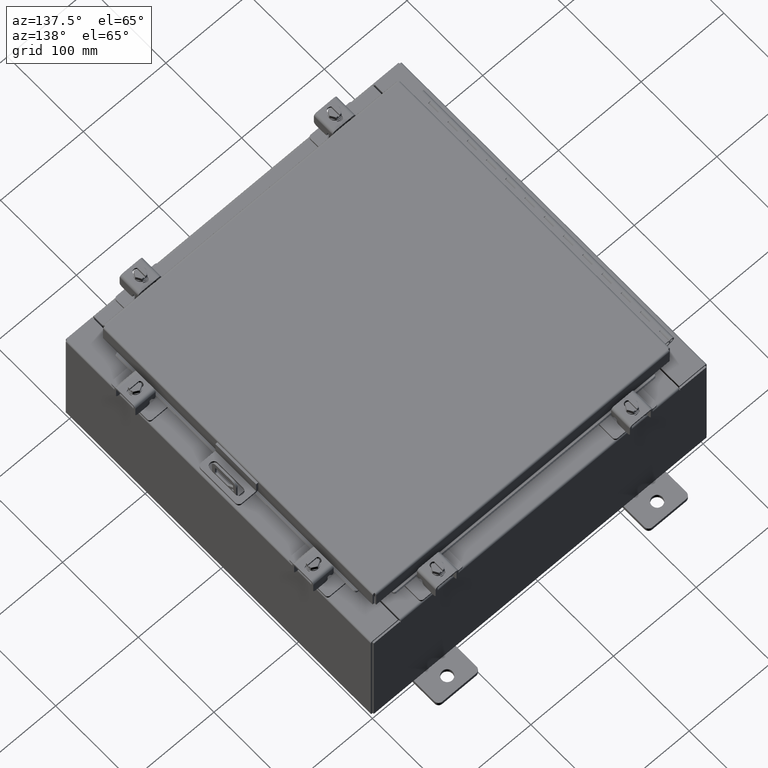
[diagram: clean part render]
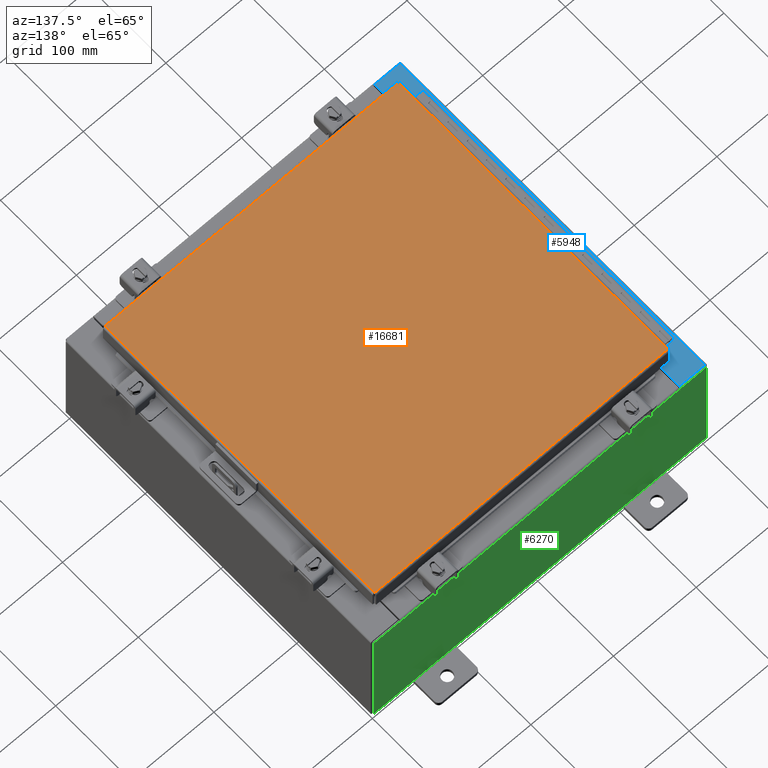
[diagram: same view with three faces highlighted in distinct colors, each labeled with its STEP entity id]
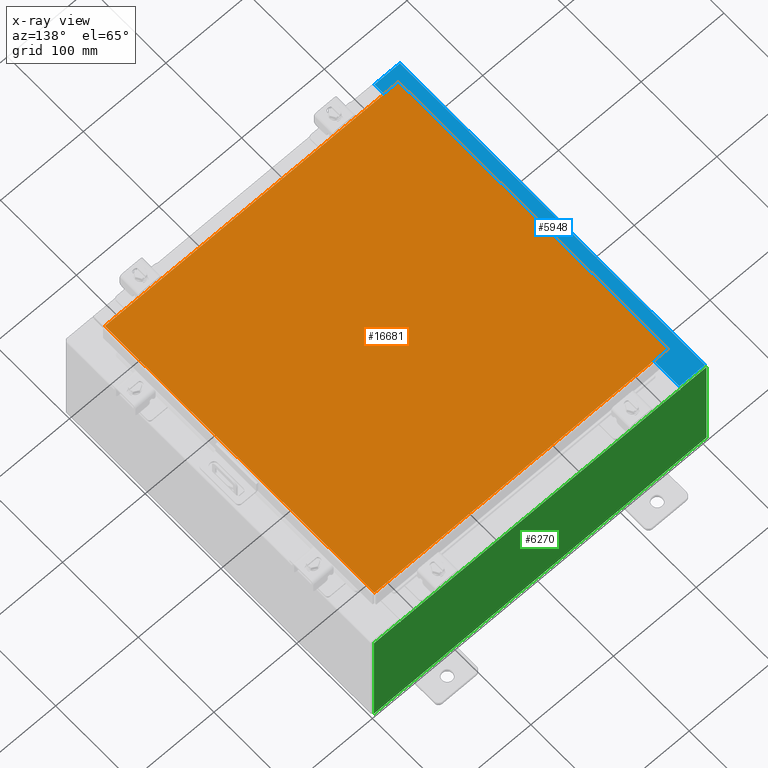
[diagram: x-ray of the same camera — body ghosted, the three highlighted faces saturated]
A machine part, auxiliary view with three faces highlighted in distinct colors.
The next image is the same camera in x-ray (body ghosted, the three faces saturated) — at least one of them is partly hidden behind the body in this view.
Their STEP definitions:

[orange] entity #16681 — the highlighted planar face has unit normal (0, 0, -1).
#27 = CARTESIAN_POINT ( 'NONE',  ( -6.990300000000001300, -7.006300000000000400, -2.048885995248197400E-016 ) ) ;
#227 = DIRECTION ( 'NONE',  ( -1.000000000000000000, 0.0000000000000000000, -0.0000000000000000000 ) ) ;
#590 = ORIENTED_EDGE ( 'NONE', *, *, #698, .T. ) ;
#698 = EDGE_CURVE ( 'NONE', #19319, #25460, #5101, .T. ) ;
#1067 = VERTEX_POINT ( 'NONE', #21289 ) ;
#3826 = VECTOR ( 'NONE', #24839, 39.37007874015748100 ) ;
#4515 = VECTOR ( 'NONE', #22687, 39.37007874015748100 ) ;
#4789 = CARTESIAN_POINT ( 'NONE',  ( 6.990299999999998600, -7.006300000000000400, -2.048885995248197400E-016 ) ) ;
#4858 = EDGE_CURVE ( 'NONE', #1067, #19319, #19912, .T. ) ;
#5101 = LINE ( 'NONE', #11307, #10512 ) ;
#5602 = CARTESIAN_POINT ( 'NONE',  ( 6.990299999999998600, 7.006300000000000400, -2.048885995248197400E-016 ) ) ;
#7922 = AXIS2_PLACEMENT_3D ( 'NONE', #8279, #12360, #227 ) ;
#8040 = DIRECTION ( 'NONE',  ( 0.0000000000000000000, 1.000000000000000000, 0.0000000000000000000 ) ) ;
#8121 = DIRECTION ( 'NONE',  ( 1.000000000000000000, -0.0000000000000000000, -0.0000000000000000000 ) ) ;
#8279 = CARTESIAN_POINT ( 'NONE',  ( 0.0000000000000000000, 0.0000000000000000000, 0.0000000000000000000 ) ) ;
#8790 = CARTESIAN_POINT ( 'NONE',  ( -6.990300000000001300, 7.006300000000000400, 3.414809992080329000E-016 ) ) ;
#9061 = VECTOR ( 'NONE', #8040, 39.37007874015748100 ) ;
#9714 = LINE ( 'NONE', #4789, #9061 ) ;
#10229 = FACE_OUTER_BOUND ( 'NONE', #20604, .T. ) ;
#10512 = VECTOR ( 'NONE', #8121, 39.37007874015748100 ) ;
#10654 = CARTESIAN_POINT ( 'NONE',  ( 6.990299999999998600, 7.006300000000000400, -2.048885995248197400E-016 ) ) ;
#10866 = ORIENTED_EDGE ( 'NONE', *, *, #4858, .T. ) ;
#10899 = VERTEX_POINT ( 'NONE', #5602 ) ;
#11307 = CARTESIAN_POINT ( 'NONE',  ( -6.990300000000001300, -7.006300000000000400, -2.048885995248197400E-016 ) ) ;
#11753 = EDGE_CURVE ( 'NONE', #25460, #10899, #9714, .T. ) ;
#12360 = DIRECTION ( 'NONE',  ( 0.0000000000000000000, 0.0000000000000000000, -1.000000000000000000 ) ) ;
#16681 = ADVANCED_FACE ( 'NONE', ( #10229 ), #18324, .F. ) ;
#17956 = ORIENTED_EDGE ( 'NONE', *, *, #11753, .T. ) ;
#18324 = PLANE ( 'NONE',  #7922 ) ;
#19319 = VERTEX_POINT ( 'NONE', #27 ) ;
#19912 = LINE ( 'NONE', #8790, #3826 ) ;
#20604 = EDGE_LOOP ( 'NONE', ( #590, #17956, #23325, #10866 ) ) ;
#21289 = CARTESIAN_POINT ( 'NONE',  ( -6.990300000000001300, 7.006300000000000400, 3.414809992080329000E-016 ) ) ;
#21367 = EDGE_CURVE ( 'NONE', #10899, #1067, #25965, .T. ) ;
#22687 = DIRECTION ( 'NONE',  ( -1.000000000000000000, -0.0000000000000000000, -0.0000000000000000000 ) ) ;
#23325 = ORIENTED_EDGE ( 'NONE', *, *, #21367, .T. ) ;
#24086 = CARTESIAN_POINT ( 'NONE',  ( 6.990299999999998600, -7.006300000000000400, -2.048885995248197400E-016 ) ) ;
#24839 = DIRECTION ( 'NONE',  ( 0.0000000000000000000, -1.000000000000000000, 0.0000000000000000000 ) ) ;
#25460 = VERTEX_POINT ( 'NONE', #24086 ) ;
#25965 = LINE ( 'NONE', #10654, #4515 ) ;

[blue] entity #5948 — the highlighted planar face has unit normal (0, 0, -1).
#746 = ORIENTED_EDGE ( 'NONE', *, *, #3103, .F. ) ;
#830 = CARTESIAN_POINT ( 'NONE',  ( -6.699700000000021300, -6.631100000000000900, 5.925300000000008000 ) ) ;
#1412 = LINE ( 'NONE', #8893, #6156 ) ;
#2247 = ORIENTED_EDGE ( 'NONE', *, *, #21503, .F. ) ;
#2326 = VERTEX_POINT ( 'NONE', #9557 ) ;
#2344 = CARTESIAN_POINT ( 'NONE',  ( -6.699700000000021300, 6.631100000000000000, 5.925300000000008000 ) ) ;
#3067 = VERTEX_POINT ( 'NONE', #5037 ) ;
#3103 = EDGE_CURVE ( 'NONE', #6498, #2326, #18593, .T. ) ;
#3966 = CARTESIAN_POINT ( 'NONE',  ( -7.912300000000022300, 7.925299999999998200, 5.925299999999999100 ) ) ;
#4132 = EDGE_CURVE ( 'NONE', #3067, #10448, #13666, .T. ) ;
#4252 = ORIENTED_EDGE ( 'NONE', *, *, #4132, .T. ) ;
#4886 = CARTESIAN_POINT ( 'NONE',  ( -6.712700000000023000, 6.593749999999999100, 5.925300000000008000 ) ) ;
#5037 = CARTESIAN_POINT ( 'NONE',  ( -6.699700000000021300, 6.631100000000000000, 5.925300000000008000 ) ) ;
#5338 = EDGE_CURVE ( 'NONE', #11186, #25336, #25891, .T. ) ;
#5948 = ADVANCED_FACE ( 'NONE', ( #9811 ), #13731, .F. ) ;
#6156 = VECTOR ( 'NONE', #20955, 39.37007874015748100 ) ;
#6498 = VERTEX_POINT ( 'NONE', #19713 ) ;
#6851 = VERTEX_POINT ( 'NONE', #14761 ) ;
#7120 = CARTESIAN_POINT ( 'NONE',  ( -6.699700000000021300, -3.231034617030575100E-030, 5.925300000000008000 ) ) ;
#7233 = DIRECTION ( 'NONE',  ( -7.132762385546378400E-015, -0.0000000000000000000, 1.000000000000000000 ) ) ;
#7430 = DIRECTION ( 'NONE',  ( 6.893992640440775600E-017, 1.000000000000000000, 4.917321139196952400E-031 ) ) ;
#7492 = ORIENTED_EDGE ( 'NONE', *, *, #21935, .F. ) ;
#7513 = DIRECTION ( 'NONE',  ( 1.000000000000000000, 0.0000000000000000000, 0.0000000000000000000 ) ) ;
#7642 = VECTOR ( 'NONE', #7513, 39.37007874015748100 ) ;
#7710 = DIRECTION ( 'NONE',  ( 7.132762385546378400E-015, 0.0000000000000000000, -1.000000000000000000 ) ) ;
#8110 = VERTEX_POINT ( 'NONE', #3966 ) ;
#8593 = LINE ( 'NONE', #24260, #13968 ) ;
#8893 = CARTESIAN_POINT ( 'NONE',  ( -4.252457061908993700E-014, 7.925299999999998200, 5.925300000000056000 ) ) ;
#8967 = LINE ( 'NONE', #26102, #19684 ) ;
#9162 = DIRECTION ( 'NONE',  ( -4.822655666717293700E-031, 1.000000000000000000, -3.439885693800320600E-045 ) ) ;
#9238 = LINE ( 'NONE', #2344, #9900 ) ;
#9331 = DIRECTION ( 'NONE',  ( 1.000000000000000000, 8.758115402030108600E-047, 7.132762385546378400E-015 ) ) ;
#9557 = CARTESIAN_POINT ( 'NONE',  ( -6.750050000000023000, -6.631099999999999100, 5.925300000000008000 ) ) ;
#9811 = FACE_OUTER_BOUND ( 'NONE', #12760, .T. ) ;
#9900 = VECTOR ( 'NONE', #16491, 39.37007874015748100 ) ;
#10189 = DIRECTION ( 'NONE',  ( 1.000000000000000000, -2.170286390199955400E-014, 0.0000000000000000000 ) ) ;
#10448 = VERTEX_POINT ( 'NONE', #21785 ) ;
#11186 = VERTEX_POINT ( 'NONE', #16534 ) ;
#11494 = CARTESIAN_POINT ( 'NONE',  ( -6.750050000000023000, 6.593749999999999100, 5.925300000000008000 ) ) ;
#11823 = CARTESIAN_POINT ( 'NONE',  ( -6.750050000000023000, 6.631099999999998200, 5.925300000000008000 ) ) ;
#11893 = CARTESIAN_POINT ( 'NONE',  ( -6.750050000000023000, 6.612424999999998200, 5.925300000000008000 ) ) ;
#12002 = LINE ( 'NONE', #23558, #16739 ) ;
#12264 = CIRCLE ( 'NONE', #22816, 0.01867500000000058700 ) ;
#12297 = DIRECTION ( 'NONE',  ( -4.822655666717293700E-031, 1.000000000000000000, -3.439885693800320600E-045 ) ) ;
#12760 = EDGE_LOOP ( 'NONE', ( #13948, #4252, #17072, #18811, #14751, #16369, #7492, #746, #23773, #2247, #19808, #15692 ) ) ;
#13027 = VECTOR ( 'NONE', #9162, 39.37007874015748100 ) ;
#13658 = EDGE_CURVE ( 'NONE', #25336, #16871, #25030, .T. ) ;
#13666 = LINE ( 'NONE', #7120, #13027 ) ;
#13731 = PLANE ( 'NONE',  #16056 ) ;
#13915 = DIRECTION ( 'NONE',  ( 1.000000000000000000, 0.0000000000000000000, 0.0000000000000000000 ) ) ;
#13948 = ORIENTED_EDGE ( 'NONE', *, *, #20643, .F. ) ;
#13968 = VECTOR ( 'NONE', #10189, 39.37007874015748100 ) ;
#14044 = DIRECTION ( 'NONE',  ( -1.000000000000000000, 0.0000000000000000000, 0.0000000000000000000 ) ) ;
#14751 = ORIENTED_EDGE ( 'NONE', *, *, #5338, .T. ) ;
#14761 = CARTESIAN_POINT ( 'NONE',  ( -6.712700000000023000, 6.593749999999999100, 5.925300000000008000 ) ) ;
#15139 = EDGE_CURVE ( 'NONE', #10448, #8110, #1412, .T. ) ;
#15692 = ORIENTED_EDGE ( 'NONE', *, *, #24728, .F. ) ;
#16056 = AXIS2_PLACEMENT_3D ( 'NONE', #25788, #7710, #21817 ) ;
#16369 = ORIENTED_EDGE ( 'NONE', *, *, #13658, .T. ) ;
#16491 = DIRECTION ( 'NONE',  ( -1.000000000000000000, -2.170286390199955400E-014, 0.0000000000000000000 ) ) ;
#16532 = VERTEX_POINT ( 'NONE', #11823 ) ;
#16534 = CARTESIAN_POINT ( 'NONE',  ( -7.912300000000022300, -7.925300000000000000, 5.925299999999999100 ) ) ;
#16739 = VECTOR ( 'NONE', #7430, 39.37007874015748100 ) ;
#16871 = VERTEX_POINT ( 'NONE', #830 ) ;
#17072 = ORIENTED_EDGE ( 'NONE', *, *, #15139, .T. ) ;
#17586 = CARTESIAN_POINT ( 'NONE',  ( -6.750050000000023000, 6.593749999999999100, 5.925300000000008000 ) ) ;
#18593 = CIRCLE ( 'NONE', #18605, 0.01867500000000058700 ) ;
#18605 = AXIS2_PLACEMENT_3D ( 'NONE', #19298, #7233, #21323 ) ;
#18811 = ORIENTED_EDGE ( 'NONE', *, *, #23416, .F. ) ;
#18970 = DIRECTION ( 'NONE',  ( -0.0000000000000000000, -1.000000000000000000, -0.0000000000000000000 ) ) ;
#19298 = CARTESIAN_POINT ( 'NONE',  ( -6.750050000000023000, -6.612424999999998200, 5.925300000000008000 ) ) ;
#19356 = CARTESIAN_POINT ( 'NONE',  ( -4.252457061908993700E-014, -7.925300000000000000, 5.925300000000056000 ) ) ;
#19675 = VECTOR ( 'NONE', #12297, 39.37007874015748100 ) ;
#19684 = VECTOR ( 'NONE', #14044, 39.37007874015748100 ) ;
#19713 = CARTESIAN_POINT ( 'NONE',  ( -6.750050000000023000, -6.593749999999999100, 5.925300000000008000 ) ) ;
#19808 = ORIENTED_EDGE ( 'NONE', *, *, #21705, .F. ) ;
#19970 = EDGE_CURVE ( 'NONE', #22497, #6498, #8967, .T. ) ;
#20346 = CARTESIAN_POINT ( 'NONE',  ( -6.712700000000023000, -6.593749999999999100, 5.925300000000008000 ) ) ;
#20518 = VECTOR ( 'NONE', #9331, 39.37007874015748100 ) ;
#20643 = EDGE_CURVE ( 'NONE', #3067, #16532, #9238, .T. ) ;
#20955 = DIRECTION ( 'NONE',  ( -1.000000000000000000, -6.146651423996189400E-032, -7.132762385546378400E-015 ) ) ;
#21323 = DIRECTION ( 'NONE',  ( 1.000000000000000000, 0.0000000000000000000, 0.0000000000000000000 ) ) ;
#21503 = EDGE_CURVE ( 'NONE', #6851, #22497, #24053, .T. ) ;
#21625 = CARTESIAN_POINT ( 'NONE',  ( -6.699700000000021300, -7.925300000000000000, 5.925300000000008000 ) ) ;
#21696 = VERTEX_POINT ( 'NONE', #11494 ) ;
#21705 = EDGE_CURVE ( 'NONE', #21696, #6851, #23727, .T. ) ;
#21785 = CARTESIAN_POINT ( 'NONE',  ( -6.699700000000021300, 7.925299999999998200, 5.925300000000008000 ) ) ;
#21817 = DIRECTION ( 'NONE',  ( -1.000000000000000000, 0.0000000000000000000, -7.132762385546378400E-015 ) ) ;
#21935 = EDGE_CURVE ( 'NONE', #2326, #16871, #8593, .T. ) ;
#22497 = VERTEX_POINT ( 'NONE', #20346 ) ;
#22788 = VECTOR ( 'NONE', #18970, 39.37007874015748100 ) ;
#22816 = AXIS2_PLACEMENT_3D ( 'NONE', #11893, #25974, #13915 ) ;
#23416 = EDGE_CURVE ( 'NONE', #11186, #8110, #12002, .T. ) ;
#23558 = CARTESIAN_POINT ( 'NONE',  ( -7.912300000000021400, 7.925299999999998200, 5.925299999999999100 ) ) ;
#23727 = LINE ( 'NONE', #17586, #7642 ) ;
#23773 = ORIENTED_EDGE ( 'NONE', *, *, #19970, .F. ) ;
#24053 = LINE ( 'NONE', #4886, #22788 ) ;
#24260 = CARTESIAN_POINT ( 'NONE',  ( -6.750050000000023000, -6.631099999999999100, 5.925300000000008000 ) ) ;
#24345 = CARTESIAN_POINT ( 'NONE',  ( -6.699700000000021300, -3.231034617030575100E-030, 5.925300000000008000 ) ) ;
#24728 = EDGE_CURVE ( 'NONE', #16532, #21696, #12264, .T. ) ;
#25030 = LINE ( 'NONE', #24345, #19675 ) ;
#25336 = VERTEX_POINT ( 'NONE', #21625 ) ;
#25788 = CARTESIAN_POINT ( 'NONE',  ( -4.252457061908993700E-014, 0.0000000000000000000, 5.925300000000056000 ) ) ;
#25891 = LINE ( 'NONE', #19356, #20518 ) ;
#25974 = DIRECTION ( 'NONE',  ( -7.132762385546378400E-015, -0.0000000000000000000, 1.000000000000000000 ) ) ;
#26102 = CARTESIAN_POINT ( 'NONE',  ( -6.712700000000023000, -6.593749999999999100, 5.925300000000008000 ) ) ;

[green] entity #6270 — the highlighted planar face has unit normal (0, -1, 0).
#63 = CARTESIAN_POINT ( 'NONE',  ( 6.655874999999998200, 0.0000000000000000000, 2.874950000000000600 ) ) ;
#624 = CARTESIAN_POINT ( 'NONE',  ( 0.0000000000000000000, 0.0000000000000000000, 0.0000000000000000000 ) ) ;
#765 = CARTESIAN_POINT ( 'NONE',  ( 7.925300000000000000, 0.0000000000000000000, 2.925300000000000500 ) ) ;
#882 = CARTESIAN_POINT ( 'NONE',  ( -6.637200000000000900, -0.0000000000000000000, 2.874950000000000600 ) ) ;
#1074 = ORIENTED_EDGE ( 'NONE', *, *, #1251, .T. ) ;
#1251 = EDGE_CURVE ( 'NONE', #9170, #22520, #3177, .T. ) ;
#1379 = EDGE_CURVE ( 'NONE', #7930, #10214, #15485, .T. ) ;
#1461 = EDGE_LOOP ( 'NONE', ( #22323, #15799, #21313, #2389, #18940, #20522, #4434, #1074, #18800, #20020, #13307, #19035 ) ) ;
#1697 = LINE ( 'NONE', #7217, #21900 ) ;
#1818 = CARTESIAN_POINT ( 'NONE',  ( -6.655875000000000900, 0.0000000000000000000, 2.874950000000000600 ) ) ;
#2089 = DIRECTION ( 'NONE',  ( 0.0000000000000000000, 0.0000000000000000000, -1.000000000000000000 ) ) ;
#2133 = CARTESIAN_POINT ( 'NONE',  ( -7.925300000000000000, 0.0000000000000000000, 2.925300000000000500 ) ) ;
#2155 = VERTEX_POINT ( 'NONE', #882 ) ;
#2389 = ORIENTED_EDGE ( 'NONE', *, *, #14790, .T. ) ;
#2802 = FACE_OUTER_BOUND ( 'NONE', #1461, .T. ) ;
#3177 = LINE ( 'NONE', #25179, #13289 ) ;
#3783 = EDGE_CURVE ( 'NONE', #25192, #2155, #21213, .T. ) ;
#3858 = DIRECTION ( 'NONE',  ( 0.0000000000000000000, 0.0000000000000000000, -1.000000000000000000 ) ) ;
#3977 = CARTESIAN_POINT ( 'NONE',  ( -6.637200000000000900, -0.0000000000000000000, 0.0000000000000000000 ) ) ;
#4434 = ORIENTED_EDGE ( 'NONE', *, *, #13296, .F. ) ;
#4980 = EDGE_CURVE ( 'NONE', #23898, #14898, #17404, .T. ) ;
#5137 = VECTOR ( 'NONE', #16062, 39.37007874015748100 ) ;
#5467 = DIRECTION ( 'NONE',  ( 0.0000000000000000000, 0.0000000000000000000, 1.000000000000000000 ) ) ;
#5763 = CARTESIAN_POINT ( 'NONE',  ( 6.674549999999999100, 0.0000000000000000000, 2.925300000000000500 ) ) ;
#6270 = ADVANCED_FACE ( 'NONE', ( #2802 ), #18799, .F. ) ;
#6681 = DIRECTION ( 'NONE',  ( 1.000000000000000000, 0.0000000000000000000, 0.0000000000000000000 ) ) ;
#6723 = DIRECTION ( 'NONE',  ( 0.0000000000000000000, -1.000000000000000000, 0.0000000000000000000 ) ) ;
#7217 = CARTESIAN_POINT ( 'NONE',  ( 6.674549999999936900, -0.0000000000000000000, -1.448568502570928700E-013 ) ) ;
#7354 = LINE ( 'NONE', #765, #12752 ) ;
#7398 = CARTESIAN_POINT ( 'NONE',  ( 7.925300000000000000, 0.0000000000000000000, -2.925299999999999600 ) ) ;
#7622 = CARTESIAN_POINT ( 'NONE',  ( -6.637200000000000900, -1.707404996040164500E-016, 2.912300000000000600 ) ) ;
#7930 = VERTEX_POINT ( 'NONE', #7398 ) ;
#7964 = EDGE_CURVE ( 'NONE', #18622, #25049, #13860, .T. ) ;
#8152 = VECTOR ( 'NONE', #10294, 39.37007874015748100 ) ;
#8493 = VECTOR ( 'NONE', #5467, 39.37007874015748100 ) ;
#9170 = VERTEX_POINT ( 'NONE', #5763 ) ;
#9684 = DIRECTION ( 'NONE',  ( 1.000000000000000000, 0.0000000000000000000, 0.0000000000000000000 ) ) ;
#10159 = VECTOR ( 'NONE', #14259, 39.37007874015748100 ) ;
#10214 = VERTEX_POINT ( 'NONE', #15021 ) ;
#10294 = DIRECTION ( 'NONE',  ( 1.000000000000000000, 0.0000000000000000000, 0.0000000000000000000 ) ) ;
#11098 = EDGE_CURVE ( 'NONE', #17859, #25049, #13508, .T. ) ;
#11667 = CARTESIAN_POINT ( 'NONE',  ( -7.925300000000000000, 0.0000000000000000000, 2.925300000000000500 ) ) ;
#12752 = VECTOR ( 'NONE', #14905, 39.37007874015748100 ) ;
#12993 = CARTESIAN_POINT ( 'NONE',  ( 6.674549999999999100, 0.0000000000000000000, 2.874950000000000600 ) ) ;
#13289 = VECTOR ( 'NONE', #6681, 39.37007874015748100 ) ;
#13296 = EDGE_CURVE ( 'NONE', #9170, #23898, #1697, .T. ) ;
#13307 = ORIENTED_EDGE ( 'NONE', *, *, #18276, .T. ) ;
#13508 = LINE ( 'NONE', #2133, #8152 ) ;
#13782 = VECTOR ( 'NONE', #9684, 39.37007874015748100 ) ;
#13860 = LINE ( 'NONE', #17567, #8493 ) ;
#14204 = DIRECTION ( 'NONE',  ( -0.0000000000000000000, 1.000000000000000000, -0.0000000000000000000 ) ) ;
#14259 = DIRECTION ( 'NONE',  ( -1.000000000000000000, -0.0000000000000000000, -0.0000000000000000000 ) ) ;
#14790 = EDGE_CURVE ( 'NONE', #25192, #19707, #24492, .T. ) ;
#14844 = VECTOR ( 'NONE', #24482, 39.37007874015748100 ) ;
#14898 = VERTEX_POINT ( 'NONE', #24095 ) ;
#14905 = DIRECTION ( 'NONE',  ( 0.0000000000000000000, 0.0000000000000000000, -1.000000000000000000 ) ) ;
#15021 = CARTESIAN_POINT ( 'NONE',  ( -7.925300000000000000, 0.0000000000000000000, -2.925299999999999600 ) ) ;
#15471 = LINE ( 'NONE', #18478, #14844 ) ;
#15485 = LINE ( 'NONE', #26059, #10159 ) ;
#15799 = ORIENTED_EDGE ( 'NONE', *, *, #18939, .F. ) ;
#15946 = DIRECTION ( 'NONE',  ( -0.0000000000000000000, 1.000000000000000000, -0.0000000000000000000 ) ) ;
#16062 = DIRECTION ( 'NONE',  ( 0.0000000000000000000, 0.0000000000000000000, -1.000000000000000000 ) ) ;
#16830 = CARTESIAN_POINT ( 'NONE',  ( -6.674550000000000900, 0.0000000000000000000, 2.925300000000000500 ) ) ;
#17404 = CIRCLE ( 'NONE', #24815, 0.01867500000000003900 ) ;
#17567 = CARTESIAN_POINT ( 'NONE',  ( -6.674550000000000900, -0.0000000000000000000, 0.0000000000000000000 ) ) ;
#17859 = VERTEX_POINT ( 'NONE', #23915 ) ;
#18187 = VECTOR ( 'NONE', #19496, 39.37007874015748100 ) ;
#18276 = EDGE_CURVE ( 'NONE', #10214, #17859, #23537, .T. ) ;
#18478 = CARTESIAN_POINT ( 'NONE',  ( 6.637199999999999100, 0.0000000000000000000, 0.0000000000000000000 ) ) ;
#18622 = VERTEX_POINT ( 'NONE', #19017 ) ;
#18799 = PLANE ( 'NONE',  #23642 ) ;
#18800 = ORIENTED_EDGE ( 'NONE', *, *, #20238, .T. ) ;
#18939 = EDGE_CURVE ( 'NONE', #2155, #18622, #25089, .T. ) ;
#18940 = ORIENTED_EDGE ( 'NONE', *, *, #23075, .F. ) ;
#19017 = CARTESIAN_POINT ( 'NONE',  ( -6.674550000000000900, 0.0000000000000000000, 2.874950000000000600 ) ) ;
#19035 = ORIENTED_EDGE ( 'NONE', *, *, #11098, .T. ) ;
#19283 = DIRECTION ( 'NONE',  ( -2.170286390200002500E-014, 0.0000000000000000000, -1.000000000000000000 ) ) ;
#19496 = DIRECTION ( 'NONE',  ( -0.0000000000000000000, -0.0000000000000000000, 1.000000000000000000 ) ) ;
#19707 = VERTEX_POINT ( 'NONE', #23283 ) ;
#20020 = ORIENTED_EDGE ( 'NONE', *, *, #1379, .T. ) ;
#20238 = EDGE_CURVE ( 'NONE', #22520, #7930, #7354, .T. ) ;
#20522 = ORIENTED_EDGE ( 'NONE', *, *, #4980, .F. ) ;
#20834 = DIRECTION ( 'NONE',  ( 0.0000000000000000000, -0.0000000000000000000, -1.000000000000000000 ) ) ;
#21213 = LINE ( 'NONE', #3977, #5137 ) ;
#21313 = ORIENTED_EDGE ( 'NONE', *, *, #3783, .F. ) ;
#21900 = VECTOR ( 'NONE', #19283, 39.37007874015748100 ) ;
#22323 = ORIENTED_EDGE ( 'NONE', *, *, #7964, .F. ) ;
#22460 = CARTESIAN_POINT ( 'NONE',  ( 7.925300000000000000, 0.0000000000000000000, 2.925300000000000500 ) ) ;
#22520 = VERTEX_POINT ( 'NONE', #22460 ) ;
#23075 = EDGE_CURVE ( 'NONE', #14898, #19707, #15471, .T. ) ;
#23129 = CARTESIAN_POINT ( 'NONE',  ( -6.637200000000000900, -1.707404996040164500E-016, 2.912300000000000600 ) ) ;
#23283 = CARTESIAN_POINT ( 'NONE',  ( 6.637199999999999100, 0.0000000000000000000, 2.912300000000000600 ) ) ;
#23537 = LINE ( 'NONE', #11667, #18187 ) ;
#23642 = AXIS2_PLACEMENT_3D ( 'NONE', #624, #6723, #20834 ) ;
#23898 = VERTEX_POINT ( 'NONE', #12993 ) ;
#23915 = CARTESIAN_POINT ( 'NONE',  ( -7.925300000000000000, 0.0000000000000000000, 2.925300000000000500 ) ) ;
#24095 = CARTESIAN_POINT ( 'NONE',  ( 6.637199999999997300, 0.0000000000000000000, 2.874950000000000600 ) ) ;
#24482 = DIRECTION ( 'NONE',  ( 0.0000000000000000000, 0.0000000000000000000, 1.000000000000000000 ) ) ;
#24492 = LINE ( 'NONE', #7622, #13782 ) ;
#24762 = AXIS2_PLACEMENT_3D ( 'NONE', #1818, #15946, #3858 ) ;
#24815 = AXIS2_PLACEMENT_3D ( 'NONE', #63, #14204, #2089 ) ;
#25049 = VERTEX_POINT ( 'NONE', #16830 ) ;
#25089 = CIRCLE ( 'NONE', #24762, 0.01867500000000003900 ) ;
#25179 = CARTESIAN_POINT ( 'NONE',  ( -7.925300000000000000, 0.0000000000000000000, 2.925300000000000500 ) ) ;
#25192 = VERTEX_POINT ( 'NONE', #23129 ) ;
#26059 = CARTESIAN_POINT ( 'NONE',  ( -7.925300000000000000, 0.0000000000000000000, -2.925299999999999600 ) ) ;